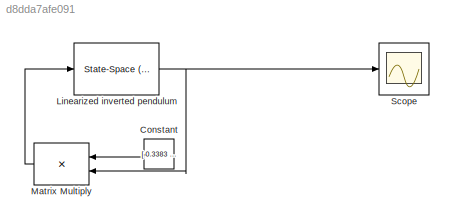
MODEL slx_d8dda7afe091
KIND model
BLOCK [Constant] Constant
  Value = [-0.3383   -0.7048  -11.4314   -1.5922]
BLOCK [Reference] Linearized inverted pendulum  REF=simulink_extras/Additional
Linear/State-Space
(with initial outputs)
  A = [0,1,0,0; 0,0,-4.5138,0; 0,0,0,1; 0,0,47.1744,0]
  B = [0; 2.1978; 0; -7.2535]
  C = eye(4)
  D = [0;0;0;0]
  Ports = [1, 1]
  SourceBlock = simulink_extras/Additional\nLinear/State-Space\n(with initial outputs)
  SourceType = State-Space with Initial Outputs
  U0 = 1
  Y0 = [0; 0; 0.035; 0.01]
BLOCK [Product] Matrix Multiply
  InputSameDT = off
  Multiplication = Matrix(*)
  OutDataTypeStr = Inherit: Inherit via internal rule
  Ports = [2, 1]
  RndMeth = Floor
  SaturateOnIntegerOverflow = off
BLOCK [Scope] Scope
  DataFormat = StructureWithTime
  Floating = off
  NumInputPorts = 1
  Ports = [1]
  SampleTime = 0
  ShowLegends = off
LINE Constant:1 -> Matrix Multiply:1
NET Linearized inverted pendulum:1 -> Matrix Multiply:2, Scope:1
LINE Matrix Multiply:1 -> Linearized inverted pendulum:1
note: NET lines group one-source signal fan-out (src -> all destinations, sorted); 1:1 wires keep LINE
